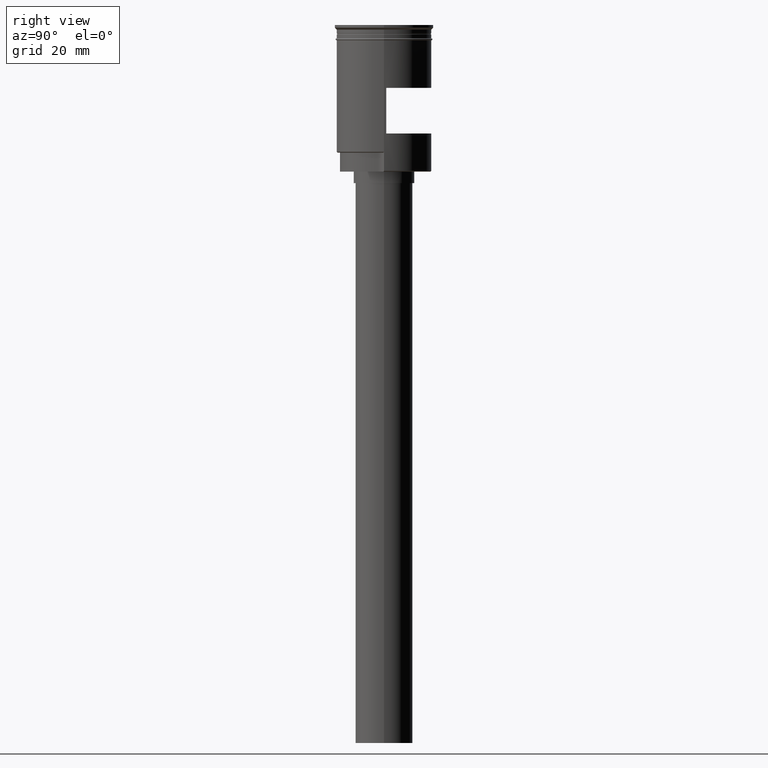
[diagram: clean part render]
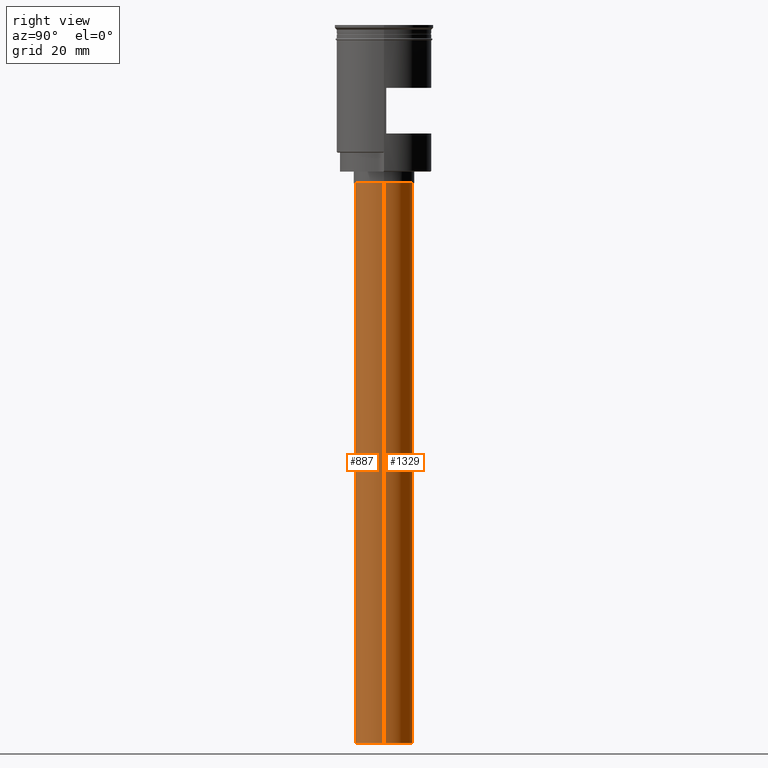
[diagram: same view with one multi-face feature highlighted, each face labeled with its STEP entity id]
A machine part, right view. The highlighted faces form ONE feature: a constant-radius fillet chain: 2 tangent blend faces with common blend radius 7.5 mm. The faces share edges in the B-rep.
Their STEP definitions:
[1] entity #887 (Cylinder):
#60 = EDGE_CURVE ( 'NONE', #1568, #481, #1283, .T. ) ;
#85 = EDGE_CURVE ( 'NONE', #1540, #1568, #89, .T. ) ;
#89 = CIRCLE ( 'NONE', #1354, 7.500000000000000000 ) ;
#122 = DIRECTION ( 'NONE',  ( -1.000000000000000000, 0.000000000000000000, 0.000000000000000000 ) ) ;
#152 = DIRECTION ( 'NONE',  ( -0.000000000000000000, -0.000000000000000000, 1.000000000000000000 ) ) ;
#177 = CARTESIAN_POINT ( 'NONE',  ( -7.500000000000000000, 9.184850993605147944E-16, -188.5000000000000000 ) ) ;
#182 = CARTESIAN_POINT ( 'NONE',  ( -7.500000000000000000, 9.184850993605147944E-16, -41.50000000000000000 ) ) ;
#364 = EDGE_CURVE ( 'NONE', #1540, #1008, #986, .T. ) ;
#373 = CARTESIAN_POINT ( 'NONE',  ( 7.500000000000000000, 0.000000000000000000, -188.5000000000000000 ) ) ;
#436 = ORIENTED_EDGE ( 'NONE', *, *, #60, .F. ) ;
#481 = VERTEX_POINT ( 'NONE', #182 ) ;
#524 = CARTESIAN_POINT ( 'NONE',  ( 0.000000000000000000, 0.000000000000000000, -41.50000000000000000 ) ) ;
#587 = VECTOR ( 'NONE', #1469, 1000.000000000000000 ) ;
#607 = CARTESIAN_POINT ( 'NONE',  ( -7.500000000000000000, 9.184850993605147944E-16, -188.5000000000000000 ) ) ;
#675 = DIRECTION ( 'NONE',  ( -0.000000000000000000, -0.000000000000000000, 1.000000000000000000 ) ) ;
#784 = CARTESIAN_POINT ( 'NONE',  ( 0.000000000000000000, 0.000000000000000000, -188.5000000000000000 ) ) ;
#809 = EDGE_CURVE ( 'NONE', #1008, #481, #1429, .T. ) ;
#846 = CARTESIAN_POINT ( 'NONE',  ( 7.500000000000000000, 0.000000000000000000, -188.5000000000000000 ) ) ;
#858 = FACE_OUTER_BOUND ( 'NONE', #1581, .T. ) ;
#869 = VECTOR ( 'NONE', #675, 1000.000000000000000 ) ;
#887 = ADVANCED_FACE ( 'NONE', ( #858 ), #1520, .T. ) ;
#894 = AXIS2_PLACEMENT_3D ( 'NONE', #524, #1015, #122 ) ;
#986 = LINE ( 'NONE', #373, #587 ) ;
#1008 = VERTEX_POINT ( 'NONE', #1514 ) ;
#1015 = DIRECTION ( 'NONE',  ( 0.000000000000000000, 0.000000000000000000, -1.000000000000000000 ) ) ;
#1115 = DIRECTION ( 'NONE',  ( 0.000000000000000000, 0.000000000000000000, -1.000000000000000000 ) ) ;
#1265 = DIRECTION ( 'NONE',  ( -1.000000000000000000, 0.000000000000000000, 0.000000000000000000 ) ) ;
#1276 = ORIENTED_EDGE ( 'NONE', *, *, #364, .T. ) ;
#1283 = LINE ( 'NONE', #177, #869 ) ;
#1301 = AXIS2_PLACEMENT_3D ( 'NONE', #784, #152, #1505 ) ;
#1349 = ORIENTED_EDGE ( 'NONE', *, *, #85, .F. ) ;
#1354 = AXIS2_PLACEMENT_3D ( 'NONE', #1473, #1115, #1265 ) ;
#1429 = CIRCLE ( 'NONE', #894, 7.500000000000000000 ) ;
#1469 = DIRECTION ( 'NONE',  ( -0.000000000000000000, -0.000000000000000000, 1.000000000000000000 ) ) ;
#1473 = CARTESIAN_POINT ( 'NONE',  ( 0.000000000000000000, 0.000000000000000000, -188.5000000000000000 ) ) ;
#1505 = DIRECTION ( 'NONE',  ( 1.000000000000000000, 0.000000000000000000, 0.000000000000000000 ) ) ;
#1514 = CARTESIAN_POINT ( 'NONE',  ( 7.500000000000000000, 0.000000000000000000, -41.50000000000000000 ) ) ;
#1520 = CYLINDRICAL_SURFACE ( 'NONE', #1301, 7.500000000000000000 ) ;
#1540 = VERTEX_POINT ( 'NONE', #846 ) ;
#1566 = ORIENTED_EDGE ( 'NONE', *, *, #809, .T. ) ;
#1568 = VERTEX_POINT ( 'NONE', #607 ) ;
#1581 = EDGE_LOOP ( 'NONE', ( #436, #1349, #1276, #1566 ) ) ;
[2] entity #1329 (Cylinder):
#60 = EDGE_CURVE ( 'NONE', #1568, #481, #1283, .T. ) ;
#124 = ORIENTED_EDGE ( 'NONE', *, *, #364, .F. ) ;
#177 = CARTESIAN_POINT ( 'NONE',  ( -7.500000000000000000, 9.184850993605147944E-16, -188.5000000000000000 ) ) ;
#182 = CARTESIAN_POINT ( 'NONE',  ( -7.500000000000000000, 9.184850993605147944E-16, -41.50000000000000000 ) ) ;
#281 = AXIS2_PLACEMENT_3D ( 'NONE', #1165, #1307, #1409 ) ;
#328 = CYLINDRICAL_SURFACE ( 'NONE', #281, 7.500000000000000000 ) ;
#364 = EDGE_CURVE ( 'NONE', #1540, #1008, #986, .T. ) ;
#373 = CARTESIAN_POINT ( 'NONE',  ( 7.500000000000000000, 0.000000000000000000, -188.5000000000000000 ) ) ;
#466 = CIRCLE ( 'NONE', #921, 7.500000000000000000 ) ;
#481 = VERTEX_POINT ( 'NONE', #182 ) ;
#503 = DIRECTION ( 'NONE',  ( -1.000000000000000000, 0.000000000000000000, 0.000000000000000000 ) ) ;
#587 = VECTOR ( 'NONE', #1469, 1000.000000000000000 ) ;
#607 = CARTESIAN_POINT ( 'NONE',  ( -7.500000000000000000, 9.184850993605147944E-16, -188.5000000000000000 ) ) ;
#664 = CARTESIAN_POINT ( 'NONE',  ( 0.000000000000000000, 0.000000000000000000, -41.50000000000000000 ) ) ;
#675 = DIRECTION ( 'NONE',  ( -0.000000000000000000, -0.000000000000000000, 1.000000000000000000 ) ) ;
#731 = ORIENTED_EDGE ( 'NONE', *, *, #984, .T. ) ;
#820 = EDGE_CURVE ( 'NONE', #1568, #1540, #1101, .T. ) ;
#828 = FACE_OUTER_BOUND ( 'NONE', #1428, .T. ) ;
#846 = CARTESIAN_POINT ( 'NONE',  ( 7.500000000000000000, 0.000000000000000000, -188.5000000000000000 ) ) ;
#869 = VECTOR ( 'NONE', #675, 1000.000000000000000 ) ;
#919 = DIRECTION ( 'NONE',  ( 0.000000000000000000, 0.000000000000000000, -1.000000000000000000 ) ) ;
#921 = AXIS2_PLACEMENT_3D ( 'NONE', #664, #919, #1287 ) ;
#964 = ORIENTED_EDGE ( 'NONE', *, *, #60, .T. ) ;
#984 = EDGE_CURVE ( 'NONE', #481, #1008, #466, .T. ) ;
#986 = LINE ( 'NONE', #373, #587 ) ;
#1004 = AXIS2_PLACEMENT_3D ( 'NONE', #1600, #1499, #503 ) ;
#1008 = VERTEX_POINT ( 'NONE', #1514 ) ;
#1101 = CIRCLE ( 'NONE', #1004, 7.500000000000000000 ) ;
#1165 = CARTESIAN_POINT ( 'NONE',  ( 0.000000000000000000, 0.000000000000000000, -188.5000000000000000 ) ) ;
#1283 = LINE ( 'NONE', #177, #869 ) ;
#1287 = DIRECTION ( 'NONE',  ( -1.000000000000000000, 0.000000000000000000, 0.000000000000000000 ) ) ;
#1307 = DIRECTION ( 'NONE',  ( -0.000000000000000000, -0.000000000000000000, 1.000000000000000000 ) ) ;
#1329 = ADVANCED_FACE ( 'NONE', ( #828 ), #328, .T. ) ;
#1409 = DIRECTION ( 'NONE',  ( 1.000000000000000000, 0.000000000000000000, 0.000000000000000000 ) ) ;
#1428 = EDGE_LOOP ( 'NONE', ( #1603, #964, #731, #124 ) ) ;
#1469 = DIRECTION ( 'NONE',  ( -0.000000000000000000, -0.000000000000000000, 1.000000000000000000 ) ) ;
#1499 = DIRECTION ( 'NONE',  ( 0.000000000000000000, 0.000000000000000000, -1.000000000000000000 ) ) ;
#1514 = CARTESIAN_POINT ( 'NONE',  ( 7.500000000000000000, 0.000000000000000000, -41.50000000000000000 ) ) ;
#1540 = VERTEX_POINT ( 'NONE', #846 ) ;
#1568 = VERTEX_POINT ( 'NONE', #607 ) ;
#1600 = CARTESIAN_POINT ( 'NONE',  ( 0.000000000000000000, 0.000000000000000000, -188.5000000000000000 ) ) ;
#1603 = ORIENTED_EDGE ( 'NONE', *, *, #820, .F. ) ;